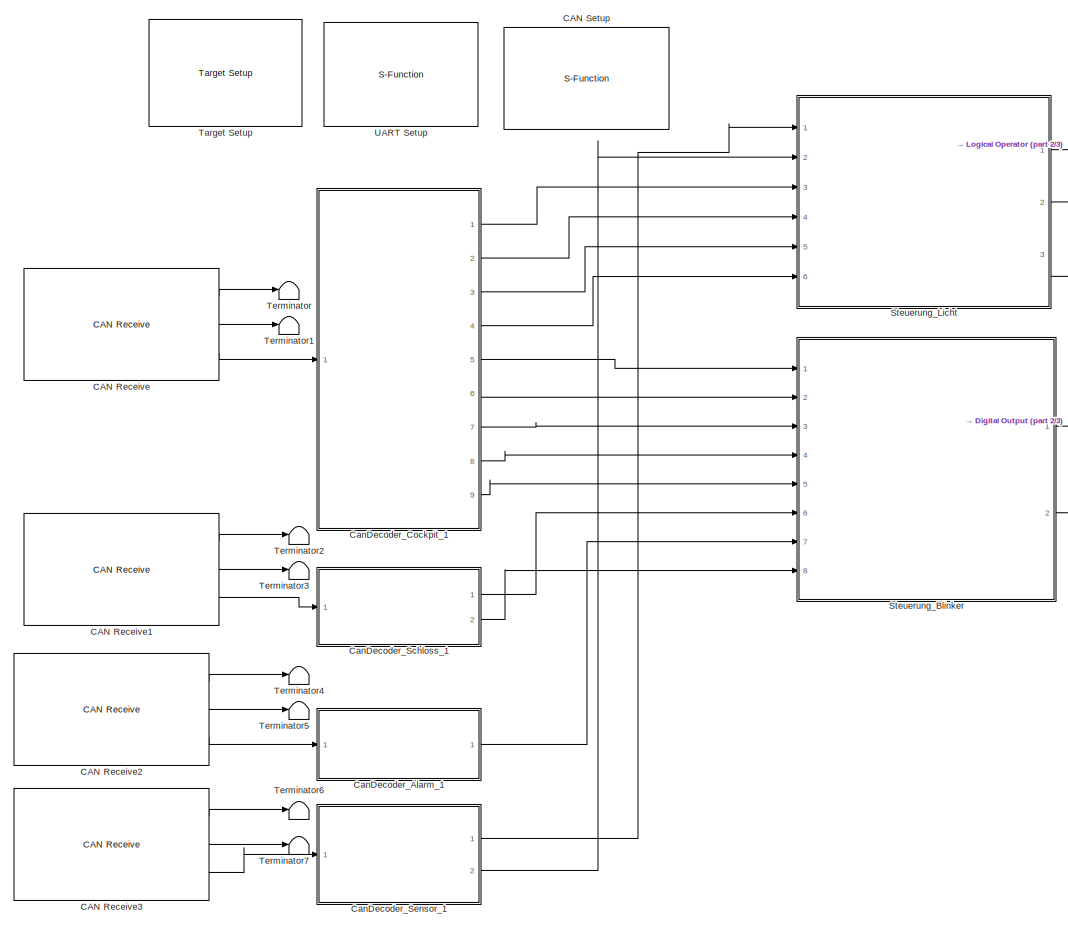
[diagram: root canvas - part 1/3, left side, full height]
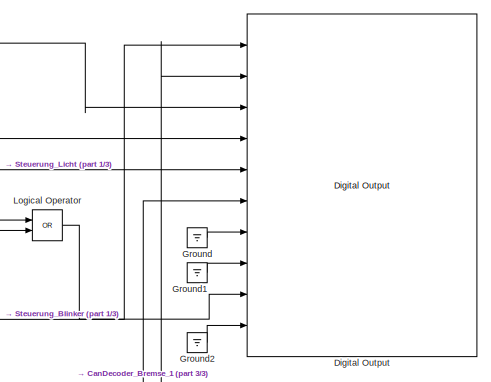
[diagram: root canvas - part 2/3, top right region]
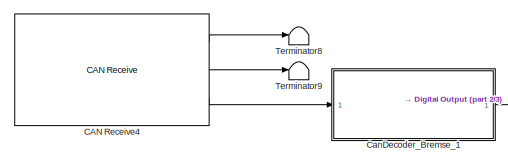
[diagram: root canvas - part 3/3, bottom left region]
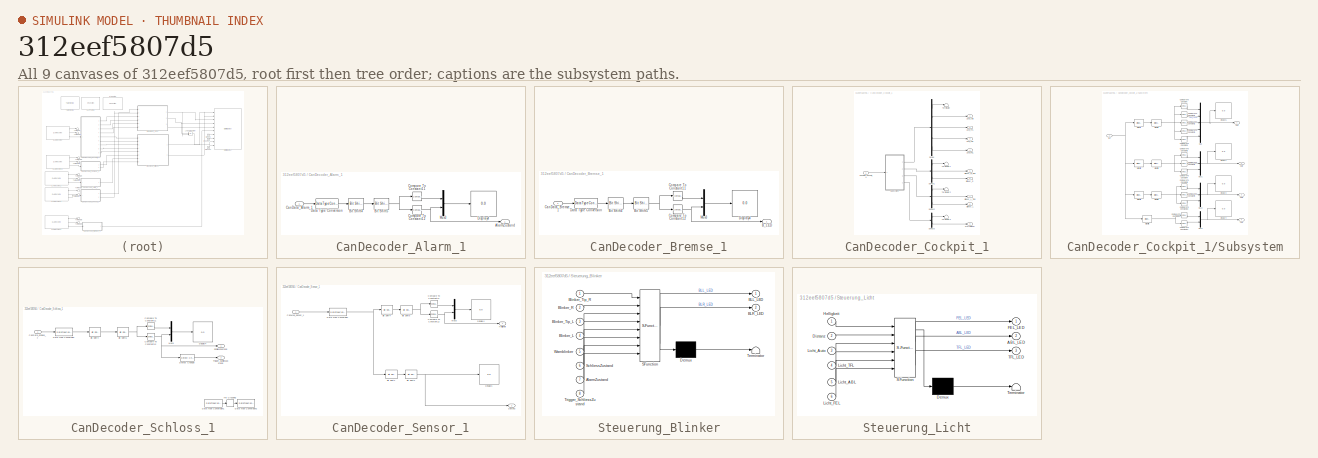
[diagram: thumbnail index - all 9 canvases of the model, root first then tree order]
MODEL slx_312eef5807d5
KIND model
CONFIG AbsTol = auto
CONFIG EnableMultiTasking = off
CONFIG FixedStep = auto
CONFIG MaxStep = auto
CONFIG MinStep = auto
CONFIG PreLoadFcn = waijung.modelPreload; % Required for working with Waijung Blockset. Do not remove.
CONFIG RelTol = 1e-3
CONFIG SampleTimeConstraint = Unconstrained
CONFIG Solver = FixedStepAuto
CONFIG SolverName = FixedStepAuto
CONFIG StartTime = 0.0
CONFIG StopTime = 10.0
BLOCK [Reference] CAN Receive  REF=stm32f4_canbus_lib/CAN Receive
  Ports = [0, 3]
  SourceBlock = stm32f4_canbus_lib/CAN Receive
  SourceType = stm32f4_can
BLOCK [Reference] CAN Receive1  REF=stm32f4_canbus_lib/CAN Receive
  Ports = [0, 3]
  SourceBlock = stm32f4_canbus_lib/CAN Receive
  SourceType = stm32f4_can
BLOCK [Reference] CAN Receive2  REF=stm32f4_canbus_lib/CAN Receive
  Ports = [0, 3]
  SourceBlock = stm32f4_canbus_lib/CAN Receive
  SourceType = stm32f4_can
BLOCK [Reference] CAN Receive3  REF=stm32f4_canbus_lib/CAN Receive
  Ports = [0, 3]
  SourceBlock = stm32f4_canbus_lib/CAN Receive
  SourceType = stm32f4_can
BLOCK [Reference] CAN Receive4  REF=stm32f4_canbus_lib/CAN Receive
  Ports = [0, 3]
  SourceBlock = stm32f4_canbus_lib/CAN Receive
  SourceType = stm32f4_can
BLOCK [S-Function] CAN Setup
  EnableBusSupport = off
  FunctionName = stm32f4_can
  Parameters = conf,canmodule,0,inputarray,outputarray,'','',confstr,sampletime,sampletimestr,blockid
  Ports = []
  SFcnIsStateOwnerBlock = off
  SFunctionDeploymentMode = off
BLOCK [SubSystem] CanDecoder_Alarm_1
  Ports = [1, 1]
  RequestExecContextInheritance = off
  Variant = off
BLOCK [Outport] CanDecoder_Alarm_1/AlarmZustand
  IconDisplay = Port number
BLOCK [Reference] CanDecoder_Alarm_1/Bit Shift4  REF=hdlsllib/Logic and Bit
Operations/Bit Shift
  Ports = [1, 1]
  SourceBlock = hdlsllib/Logic and Bit\nOperations/Bit Shift
  SourceProductBaseCode = HD
  SourceProductName = HDL Coder
  SourceType = Bit Shift
BLOCK [Reference] CanDecoder_Alarm_1/Bit Shift5  REF=hdlsllib/Logic and Bit
Operations/Bit Shift
  Ports = [1, 1]
  SourceBlock = hdlsllib/Logic and Bit\nOperations/Bit Shift
  SourceProductBaseCode = HD
  SourceProductName = HDL Coder
  SourceType = Bit Shift
BLOCK [Inport] CanDecoder_Alarm_1/CanData_Alarm_1
  IconDisplay = Port number
BLOCK [Reference] CanDecoder_Alarm_1/Compare To Constant11  REF=simulink/Logic and Bit
Operations/Compare
To Constant
  Ports = [1, 1]
  SourceBlock = simulink/Logic and Bit\nOperations/Compare\nTo Constant
  SourceProductBaseCode = SL
  SourceProductName = Simulink
  SourceType = Compare To Constant
BLOCK [Reference] CanDecoder_Alarm_1/Compare To Constant12  REF=simulink/Logic and Bit
Operations/Compare
To Constant
  Ports = [1, 1]
  SourceBlock = simulink/Logic and Bit\nOperations/Compare\nTo Constant
  SourceProductBaseCode = SL
  SourceProductName = Simulink
  SourceType = Compare To Constant
BLOCK [DataTypeConversion] CanDecoder_Alarm_1/Data Type Conversion
  OutDataTypeStr = uint8
  RndMeth = Floor
  SaturateOnIntegerOverflow = off
BLOCK [Display] CanDecoder_Alarm_1/Display4
  Decimation = 1
  Ports = [1]
BLOCK [Mux] CanDecoder_Alarm_1/Mux3
  DisplayOption = bar
  Inputs = 2
  Ports = [2, 1]
BLOCK [SubSystem] CanDecoder_Bremse_1
  Ports = [1, 1]
  RequestExecContextInheritance = off
  Variant = off
BLOCK [Outport] CanDecoder_Bremse_1/B_LED
  IconDisplay = Port number
BLOCK [Reference] CanDecoder_Bremse_1/Bit Shift4  REF=hdlsllib/Logic and Bit
Operations/Bit Shift
  Ports = [1, 1]
  SourceBlock = hdlsllib/Logic and Bit\nOperations/Bit Shift
  SourceProductBaseCode = HD
  SourceProductName = HDL Coder
  SourceType = Bit Shift
BLOCK [Reference] CanDecoder_Bremse_1/Bit Shift5  REF=hdlsllib/Logic and Bit
Operations/Bit Shift
  Ports = [1, 1]
  SourceBlock = hdlsllib/Logic and Bit\nOperations/Bit Shift
  SourceProductBaseCode = HD
  SourceProductName = HDL Coder
  SourceType = Bit Shift
BLOCK [Inport] CanDecoder_Bremse_1/CanData_Bremse_1
  IconDisplay = Port number
BLOCK [Reference] CanDecoder_Bremse_1/Compare To Constant11  REF=simulink/Logic and Bit
Operations/Compare
To Constant
  Ports = [1, 1]
  SourceBlock = simulink/Logic and Bit\nOperations/Compare\nTo Constant
  SourceProductBaseCode = SL
  SourceProductName = Simulink
  SourceType = Compare To Constant
BLOCK [Reference] CanDecoder_Bremse_1/Compare To Constant12  REF=simulink/Logic and Bit
Operations/Compare
To Constant
  Ports = [1, 1]
  SourceBlock = simulink/Logic and Bit\nOperations/Compare\nTo Constant
  SourceProductBaseCode = SL
  SourceProductName = Simulink
  SourceType = Compare To Constant
BLOCK [DataTypeConversion] CanDecoder_Bremse_1/Data Type Conversion
  OutDataTypeStr = uint8
  RndMeth = Floor
  SaturateOnIntegerOverflow = off
BLOCK [Display] CanDecoder_Bremse_1/Display4
  Decimation = 1
  Ports = [1]
BLOCK [Mux] CanDecoder_Bremse_1/Mux3
  DisplayOption = bar
  Inputs = 2
  Ports = [2, 1]
BLOCK [SubSystem] CanDecoder_Cockpit_1
  Ports = [1, 9]
  RequestExecContextInheritance = off
  Variant = off
BLOCK [Outport] CanDecoder_Cockpit_1/Blinker_L
  IconDisplay = Port number
  Port = 8
BLOCK [Outport] CanDecoder_Cockpit_1/Blinker_L_Tipp
  IconDisplay = Port number
  Port = 7
BLOCK [Outport] CanDecoder_Cockpit_1/Blinker_R
  IconDisplay = Port number
  Port = 6
BLOCK [Outport] CanDecoder_Cockpit_1/Blinker_R_Tipp
  IconDisplay = Port number
  Port = 5
BLOCK [Inport] CanDecoder_Cockpit_1/CanData_Cockpit_1
  IconDisplay = Port number
BLOCK [Demux] CanDecoder_Cockpit_1/Demux
  DisplayOption = bar
  Outputs = 5
  Ports = [1, 5]
BLOCK [Demux] CanDecoder_Cockpit_1/Demux1
  DisplayOption = bar
  Outputs = 3
  Ports = [1, 3]
BLOCK [Demux] CanDecoder_Cockpit_1/Demux2
  DisplayOption = bar
  Outputs = 3
  Ports = [1, 3]
BLOCK [Demux] CanDecoder_Cockpit_1/Demux3
  DisplayOption = bar
  Outputs = 2
  Ports = [1, 2]
BLOCK [Outport] CanDecoder_Cockpit_1/Licht_ABL
  IconDisplay = Port number
  Port = 3
BLOCK [Outport] CanDecoder_Cockpit_1/Licht_Auto
  IconDisplay = Port number
BLOCK [Outport] CanDecoder_Cockpit_1/Licht_FEL
  IconDisplay = Port number
  Port = 4
BLOCK [Outport] CanDecoder_Cockpit_1/Licht_TFL
  IconDisplay = Port number
  Port = 2
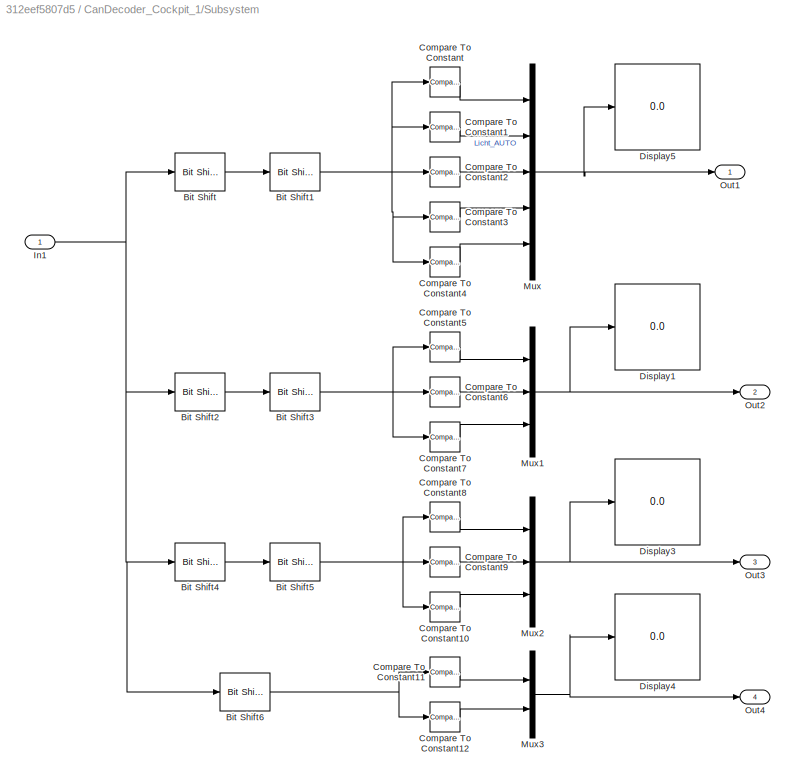
BLOCK [SubSystem] CanDecoder_Cockpit_1/Subsystem
  Ports = [1, 4]
  RequestExecContextInheritance = off
  Variant = off
BLOCK [Reference] CanDecoder_Cockpit_1/Subsystem/Bit Shift  REF=hdlsllib/Logic and Bit
Operations/Bit Shift
  Ports = [1, 1]
  SourceBlock = hdlsllib/Logic and Bit\nOperations/Bit Shift
  SourceProductBaseCode = HD
  SourceProductName = HDL Coder
  SourceType = Bit Shift
BLOCK [Reference] CanDecoder_Cockpit_1/Subsystem/Bit Shift1  REF=hdlsllib/Logic and Bit
Operations/Bit Shift
  Ports = [1, 1]
  SourceBlock = hdlsllib/Logic and Bit\nOperations/Bit Shift
  SourceProductBaseCode = HD
  SourceProductName = HDL Coder
  SourceType = Bit Shift
BLOCK [Reference] CanDecoder_Cockpit_1/Subsystem/Bit Shift2  REF=hdlsllib/Logic and Bit
Operations/Bit Shift
  Ports = [1, 1]
  SourceBlock = hdlsllib/Logic and Bit\nOperations/Bit Shift
  SourceProductBaseCode = HD
  SourceProductName = HDL Coder
  SourceType = Bit Shift
BLOCK [Reference] CanDecoder_Cockpit_1/Subsystem/Bit Shift3  REF=hdlsllib/Logic and Bit
Operations/Bit Shift
  Ports = [1, 1]
  SourceBlock = hdlsllib/Logic and Bit\nOperations/Bit Shift
  SourceProductBaseCode = HD
  SourceProductName = HDL Coder
  SourceType = Bit Shift
BLOCK [Reference] CanDecoder_Cockpit_1/Subsystem/Bit Shift4  REF=hdlsllib/Logic and Bit
Operations/Bit Shift
  Ports = [1, 1]
  SourceBlock = hdlsllib/Logic and Bit\nOperations/Bit Shift
  SourceProductBaseCode = HD
  SourceProductName = HDL Coder
  SourceType = Bit Shift
BLOCK [Reference] CanDecoder_Cockpit_1/Subsystem/Bit Shift5  REF=hdlsllib/Logic and Bit
Operations/Bit Shift
  Ports = [1, 1]
  SourceBlock = hdlsllib/Logic and Bit\nOperations/Bit Shift
  SourceProductBaseCode = HD
  SourceProductName = HDL Coder
  SourceType = Bit Shift
BLOCK [Reference] CanDecoder_Cockpit_1/Subsystem/Bit Shift6  REF=hdlsllib/Logic and Bit
Operations/Bit Shift
  Ports = [1, 1]
  SourceBlock = hdlsllib/Logic and Bit\nOperations/Bit Shift
  SourceProductBaseCode = HD
  SourceProductName = HDL Coder
  SourceType = Bit Shift
BLOCK [Reference] CanDecoder_Cockpit_1/Subsystem/Compare To Constant  REF=simulink/Logic and Bit
Operations/Compare
To Constant
  Ports = [1, 1]
  SourceBlock = simulink/Logic and Bit\nOperations/Compare\nTo Constant
  SourceProductBaseCode = SL
  SourceProductName = Simulink
  SourceType = Compare To Constant
BLOCK [Reference] CanDecoder_Cockpit_1/Subsystem/Compare To Constant1  REF=simulink/Logic and Bit
Operations/Compare
To Constant
  Ports = [1, 1]
  SourceBlock = simulink/Logic and Bit\nOperations/Compare\nTo Constant
  SourceProductBaseCode = SL
  SourceProductName = Simulink
  SourceType = Compare To Constant
BLOCK [Reference] CanDecoder_Cockpit_1/Subsystem/Compare To Constant10  REF=simulink/Logic and Bit
Operations/Compare
To Constant
  Ports = [1, 1]
  SourceBlock = simulink/Logic and Bit\nOperations/Compare\nTo Constant
  SourceProductBaseCode = SL
  SourceProductName = Simulink
  SourceType = Compare To Constant
BLOCK [Reference] CanDecoder_Cockpit_1/Subsystem/Compare To Constant11  REF=simulink/Logic and Bit
Operations/Compare
To Constant
  Ports = [1, 1]
  SourceBlock = simulink/Logic and Bit\nOperations/Compare\nTo Constant
  SourceProductBaseCode = SL
  SourceProductName = Simulink
  SourceType = Compare To Constant
BLOCK [Reference] CanDecoder_Cockpit_1/Subsystem/Compare To Constant12  REF=simulink/Logic and Bit
Operations/Compare
To Constant
  Ports = [1, 1]
  SourceBlock = simulink/Logic and Bit\nOperations/Compare\nTo Constant
  SourceProductBaseCode = SL
  SourceProductName = Simulink
  SourceType = Compare To Constant
BLOCK [Reference] CanDecoder_Cockpit_1/Subsystem/Compare To Constant2  REF=simulink/Logic and Bit
Operations/Compare
To Constant
  Ports = [1, 1]
  SourceBlock = simulink/Logic and Bit\nOperations/Compare\nTo Constant
  SourceProductBaseCode = SL
  SourceProductName = Simulink
  SourceType = Compare To Constant
BLOCK [Reference] CanDecoder_Cockpit_1/Subsystem/Compare To Constant3  REF=simulink/Logic and Bit
Operations/Compare
To Constant
  Ports = [1, 1]
  SourceBlock = simulink/Logic and Bit\nOperations/Compare\nTo Constant
  SourceProductBaseCode = SL
  SourceProductName = Simulink
  SourceType = Compare To Constant
BLOCK [Reference] CanDecoder_Cockpit_1/Subsystem/Compare To Constant4  REF=simulink/Logic and Bit
Operations/Compare
To Constant
  Ports = [1, 1]
  SourceBlock = simulink/Logic and Bit\nOperations/Compare\nTo Constant
  SourceProductBaseCode = SL
  SourceProductName = Simulink
  SourceType = Compare To Constant
BLOCK [Reference] CanDecoder_Cockpit_1/Subsystem/Compare To Constant5  REF=simulink/Logic and Bit
Operations/Compare
To Constant
  Ports = [1, 1]
  SourceBlock = simulink/Logic and Bit\nOperations/Compare\nTo Constant
  SourceProductBaseCode = SL
  SourceProductName = Simulink
  SourceType = Compare To Constant
BLOCK [Reference] CanDecoder_Cockpit_1/Subsystem/Compare To Constant6  REF=simulink/Logic and Bit
Operations/Compare
To Constant
  Ports = [1, 1]
  SourceBlock = simulink/Logic and Bit\nOperations/Compare\nTo Constant
  SourceProductBaseCode = SL
  SourceProductName = Simulink
  SourceType = Compare To Constant
BLOCK [Reference] CanDecoder_Cockpit_1/Subsystem/Compare To Constant7  REF=simulink/Logic and Bit
Operations/Compare
To Constant
  Ports = [1, 1]
  SourceBlock = simulink/Logic and Bit\nOperations/Compare\nTo Constant
  SourceProductBaseCode = SL
  SourceProductName = Simulink
  SourceType = Compare To Constant
BLOCK [Reference] CanDecoder_Cockpit_1/Subsystem/Compare To Constant8  REF=simulink/Logic and Bit
Operations/Compare
To Constant
  Ports = [1, 1]
  SourceBlock = simulink/Logic and Bit\nOperations/Compare\nTo Constant
  SourceProductBaseCode = SL
  SourceProductName = Simulink
  SourceType = Compare To Constant
BLOCK [Reference] CanDecoder_Cockpit_1/Subsystem/Compare To Constant9  REF=simulink/Logic and Bit
Operations/Compare
To Constant
  Ports = [1, 1]
  SourceBlock = simulink/Logic and Bit\nOperations/Compare\nTo Constant
  SourceProductBaseCode = SL
  SourceProductName = Simulink
  SourceType = Compare To Constant
BLOCK [Display] CanDecoder_Cockpit_1/Subsystem/Display1
  Decimation = 1
  Ports = [1]
BLOCK [Display] CanDecoder_Cockpit_1/Subsystem/Display3
  Decimation = 1
  Ports = [1]
BLOCK [Display] CanDecoder_Cockpit_1/Subsystem/Display4
  Decimation = 1
  Ports = [1]
BLOCK [Display] CanDecoder_Cockpit_1/Subsystem/Display5
  Decimation = 1
  Ports = [1]
BLOCK [Inport] CanDecoder_Cockpit_1/Subsystem/In1
  IconDisplay = Port number
BLOCK [Mux] CanDecoder_Cockpit_1/Subsystem/Mux
  DisplayOption = bar
  Inputs = 5
  Ports = [5, 1]
BLOCK [Mux] CanDecoder_Cockpit_1/Subsystem/Mux1
  DisplayOption = bar
  Inputs = 3
  Ports = [3, 1]
BLOCK [Mux] CanDecoder_Cockpit_1/Subsystem/Mux2
  DisplayOption = bar
  Inputs = 3
  Ports = [3, 1]
BLOCK [Mux] CanDecoder_Cockpit_1/Subsystem/Mux3
  DisplayOption = bar
  Inputs = 2
  Ports = [2, 1]
BLOCK [Outport] CanDecoder_Cockpit_1/Subsystem/Out1
  IconDisplay = Port number
BLOCK [Outport] CanDecoder_Cockpit_1/Subsystem/Out2
  IconDisplay = Port number
  Port = 2
BLOCK [Outport] CanDecoder_Cockpit_1/Subsystem/Out3
  IconDisplay = Port number
  Port = 3
BLOCK [Outport] CanDecoder_Cockpit_1/Subsystem/Out4
  IconDisplay = Port number
  Port = 4
BLOCK [Terminator] CanDecoder_Cockpit_1/Terminator
BLOCK [Terminator] CanDecoder_Cockpit_1/Terminator1
BLOCK [Terminator] CanDecoder_Cockpit_1/Terminator2
BLOCK [Terminator] CanDecoder_Cockpit_1/Terminator3
BLOCK [Outport] CanDecoder_Cockpit_1/Warnblinker
  IconDisplay = Port number
  Port = 9
BLOCK [SubSystem] CanDecoder_Schloss_1
  Ports = [1, 2]
  RequestExecContextInheritance = off
  Variant = off
BLOCK [Reference] CanDecoder_Schloss_1/Bit Shift4  REF=hdlsllib/Logic and Bit
Operations/Bit Shift
  Ports = [1, 1]
  SourceBlock = hdlsllib/Logic and Bit\nOperations/Bit Shift
  SourceProductBaseCode = HD
  SourceProductName = HDL Coder
  SourceType = Bit Shift
BLOCK [Reference] CanDecoder_Schloss_1/Bit Shift5  REF=hdlsllib/Logic and Bit
Operations/Bit Shift
  Ports = [1, 1]
  SourceBlock = hdlsllib/Logic and Bit\nOperations/Bit Shift
  SourceProductBaseCode = HD
  SourceProductName = HDL Coder
  SourceType = Bit Shift
BLOCK [Inport] CanDecoder_Schloss_1/CanData_Schloss_1
  IconDisplay = Port number
BLOCK [Reference] CanDecoder_Schloss_1/Compare To Constant11  REF=simulink/Logic and Bit
Operations/Compare
To Constant
  Ports = [1, 1]
  SourceBlock = simulink/Logic and Bit\nOperations/Compare\nTo Constant
  SourceProductBaseCode = SL
  SourceProductName = Simulink
  SourceType = Compare To Constant
BLOCK [Reference] CanDecoder_Schloss_1/Compare To Constant12  REF=simulink/Logic and Bit
Operations/Compare
To Constant
  Ports = [1, 1]
  SourceBlock = simulink/Logic and Bit\nOperations/Compare\nTo Constant
  SourceProductBaseCode = SL
  SourceProductName = Simulink
  SourceType = Compare To Constant
BLOCK [DataTypeConversion] CanDecoder_Schloss_1/Data Type Conversion
  OutDataTypeStr = uint8
  RndMeth = Floor
  SaturateOnIntegerOverflow = off
BLOCK [DataTypeConversion] CanDecoder_Schloss_1/Data Type Conversion1
  Commented = on
  RndMeth = Floor
  SaturateOnIntegerOverflow = off
BLOCK [DataTypeConversion] CanDecoder_Schloss_1/Data Type Conversion2
  Commented = on
  RndMeth = Floor
  SaturateOnIntegerOverflow = off
BLOCK [Reference] CanDecoder_Schloss_1/Detect Change  REF=simulink/Logic and Bit
Operations/Detect
Change
  Ports = [1, 1]
  SourceBlock = simulink/Logic and Bit\nOperations/Detect\nChange
  SourceProductBaseCode = SL
  SourceProductName = Simulink
  SourceType = Detect Change
BLOCK [Display] CanDecoder_Schloss_1/Display4
  Decimation = 1
  Ports = [1]
BLOCK [HitCross] CanDecoder_Schloss_1/Hit Crossing
  Commented = on
  HitCrossingOffset = 0.5
  Ports = [1, 1]
BLOCK [Mux] CanDecoder_Schloss_1/Mux3
  DisplayOption = bar
  Inputs = 2
  Ports = [2, 1]
BLOCK [Outport] CanDecoder_Schloss_1/SchliessZustand
  IconDisplay = Port number
BLOCK [Outport] CanDecoder_Schloss_1/Trigger_SchliessZustand
  IconDisplay = Port number
  Port = 2
BLOCK [SubSystem] CanDecoder_Sensor_1
  Ports = [1, 2]
  RequestExecContextInheritance = off
  Variant = off
BLOCK [Reference] CanDecoder_Sensor_1/Bit Shift1  REF=hdlsllib/Logic and Bit
Operations/Bit Shift
  Ports = [1, 1]
  SourceBlock = hdlsllib/Logic and Bit\nOperations/Bit Shift
  SourceProductBaseCode = HD
  SourceProductName = HDL Coder
  SourceType = Bit Shift
BLOCK [Reference] CanDecoder_Sensor_1/Bit Shift2  REF=hdlsllib/Logic and Bit
Operations/Bit Shift
  Ports = [1, 1]
  SourceBlock = hdlsllib/Logic and Bit\nOperations/Bit Shift
  SourceProductBaseCode = HD
  SourceProductName = HDL Coder
  SourceType = Bit Shift
BLOCK [Reference] CanDecoder_Sensor_1/Bit Shift4  REF=hdlsllib/Logic and Bit
Operations/Bit Shift
  Ports = [1, 1]
  SourceBlock = hdlsllib/Logic and Bit\nOperations/Bit Shift
  SourceProductBaseCode = HD
  SourceProductName = HDL Coder
  SourceType = Bit Shift
BLOCK [Reference] CanDecoder_Sensor_1/Bit Shift5  REF=hdlsllib/Logic and Bit
Operations/Bit Shift
  Ports = [1, 1]
  SourceBlock = hdlsllib/Logic and Bit\nOperations/Bit Shift
  SourceProductBaseCode = HD
  SourceProductName = HDL Coder
  SourceType = Bit Shift
BLOCK [Inport] CanDecoder_Sensor_1/CanMsg_Sensor_1
  IconDisplay = Port number
BLOCK [Reference] CanDecoder_Sensor_1/Compare To Constant11  REF=simulink/Logic and Bit
Operations/Compare
To Constant
  Ports = [1, 1]
  SourceBlock = simulink/Logic and Bit\nOperations/Compare\nTo Constant
  SourceProductBaseCode = SL
  SourceProductName = Simulink
  SourceType = Compare To Constant
BLOCK [Reference] CanDecoder_Sensor_1/Compare To Constant12  REF=simulink/Logic and Bit
Operations/Compare
To Constant
  Ports = [1, 1]
  SourceBlock = simulink/Logic and Bit\nOperations/Compare\nTo Constant
  SourceProductBaseCode = SL
  SourceProductName = Simulink
  SourceType = Compare To Constant
BLOCK [DataTypeConversion] CanDecoder_Sensor_1/Data Type Conversion
  OutDataTypeStr = uint16
  RndMeth = Floor
  SaturateOnIntegerOverflow = off
BLOCK [Display] CanDecoder_Sensor_1/Display1
  Decimation = 1
  Format = long
  Ports = [1]
BLOCK [Display] CanDecoder_Sensor_1/Display4
  Decimation = 1
  Ports = [1]
BLOCK [Outport] CanDecoder_Sensor_1/Distanz
  IconDisplay = Port number
  Port = 2
BLOCK [Outport] CanDecoder_Sensor_1/Helligkeit
  IconDisplay = Port number
BLOCK [Mux] CanDecoder_Sensor_1/Mux3
  DisplayOption = bar
  Inputs = 2
  Ports = [2, 1]
BLOCK [Reference] Digital Output  REF=stm32f4_io_lib/Digital Output
  Ports = [10]
  SourceBlock = stm32f4_io_lib/Digital Output
  SourceProductName = Waijung Blockset
  SourceType = stm32f4_digital_output
BLOCK [Ground] Ground
BLOCK [Ground] Ground1
BLOCK [Ground] Ground2
BLOCK [Logic] Logical Operator
  AllPortsSameDT = off
  Operator = OR
  OutDataTypeStr = boolean
  Ports = [2, 1]
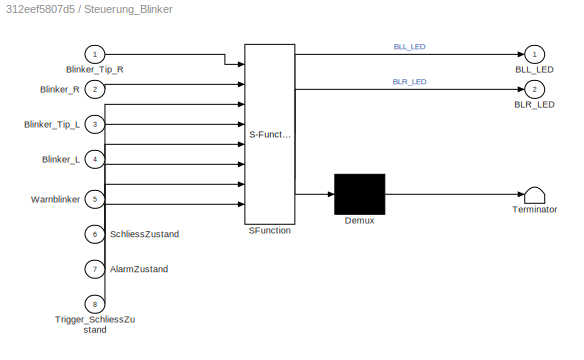
BLOCK [SubSystem] Steuerung_Blinker
  ErrorFcn = Stateflow.Translate.translate
  PermitHierarchicalResolution = ExplicitOnly
  Ports = [8, 2]
  RequestExecContextInheritance = off
  SFBlockType = Chart
  TreatAsAtomicUnit = on
  Variant = off
BLOCK [Demux] Steuerung_Blinker/ Demux 
  Outputs = 1
  Ports = [1, 1]
BLOCK [S-Function] Steuerung_Blinker/ SFunction 
  EnableBusSupport = on
  FunctionName = sf_sfun
  Parameters = 9
  PortCounts = [8 3]
  Ports = [8, 3]
  SFcnIsStateOwnerBlock = off
  SFunctionDeploymentMode = off
  Tag = Stateflow S-Function BlinkerCAN 3
BLOCK [Terminator] Steuerung_Blinker/ Terminator 
BLOCK [Inport] Steuerung_Blinker/AlarmZustand
  IconDisplay = Port number
  Port = 7
BLOCK [Outport] Steuerung_Blinker/BLL_LED
  IconDisplay = Port number
BLOCK [Outport] Steuerung_Blinker/BLR_LED
  IconDisplay = Port number
  Port = 2
BLOCK [Inport] Steuerung_Blinker/Blinker_L
  IconDisplay = Port number
  Port = 4
BLOCK [Inport] Steuerung_Blinker/Blinker_R
  IconDisplay = Port number
  Port = 2
BLOCK [Inport] Steuerung_Blinker/Blinker_Tip_L
  IconDisplay = Port number
  Port = 3
BLOCK [Inport] Steuerung_Blinker/Blinker_Tip_R
  IconDisplay = Port number
BLOCK [Inport] Steuerung_Blinker/SchliessZustand
  IconDisplay = Port number
  Port = 6
BLOCK [Inport] Steuerung_Blinker/Trigger_SchliessZustand
  IconDisplay = Port number
  Port = 8
BLOCK [Inport] Steuerung_Blinker/Warnblinker
  IconDisplay = Port number
  Port = 5
BLOCK [SubSystem] Steuerung_Licht
  ErrorFcn = Stateflow.Translate.translate
  PermitHierarchicalResolution = ExplicitOnly
  Ports = [6, 3]
  RequestExecContextInheritance = off
  SFBlockType = Chart
  TreatAsAtomicUnit = on
  Variant = off
BLOCK [Demux] Steuerung_Licht/ Demux 
  Outputs = 1
  Ports = [1, 1]
BLOCK [S-Function] Steuerung_Licht/ SFunction 
  EnableBusSupport = on
  FunctionName = sf_sfun
  PortCounts = [6 4]
  Ports = [6, 4]
  SFcnIsStateOwnerBlock = off
  SFunctionDeploymentMode = off
  Tag = Stateflow S-Function BlinkerCAN 1
BLOCK [Terminator] Steuerung_Licht/ Terminator 
BLOCK [Outport] Steuerung_Licht/ABL_LED
  IconDisplay = Port number
  Port = 2
BLOCK [Inport] Steuerung_Licht/Distanz
  IconDisplay = Port number
  Port = 2
BLOCK [Outport] Steuerung_Licht/FEL_LED
  IconDisplay = Port number
BLOCK [Inport] Steuerung_Licht/Helligkeit
  IconDisplay = Port number
BLOCK [Inport] Steuerung_Licht/Licht_ABL
  IconDisplay = Port number
  Port = 5
BLOCK [Inport] Steuerung_Licht/Licht_Auto
  IconDisplay = Port number
  Port = 3
BLOCK [Inport] Steuerung_Licht/Licht_FEL
  IconDisplay = Port number
  Port = 6
BLOCK [Inport] Steuerung_Licht/Licht_TFL
  IconDisplay = Port number
  Port = 4
BLOCK [Outport] Steuerung_Licht/TFL_LED
  IconDisplay = Port number
  Port = 3
BLOCK [Reference] Target Setup  REF=stm32f4_device_config_lib/Target Setup
  Ports = []
  Priority = 100
  SourceBlock = stm32f4_device_config_lib/Target Setup
  SourceProductName = Waijung Blockset
  SourceType = stm32f4_target_setup
BLOCK [Terminator] Terminator
BLOCK [Terminator] Terminator1
BLOCK [Terminator] Terminator2
BLOCK [Terminator] Terminator3
BLOCK [Terminator] Terminator4
BLOCK [Terminator] Terminator5
BLOCK [Terminator] Terminator6
BLOCK [Terminator] Terminator7
BLOCK [Terminator] Terminator8
BLOCK [Terminator] Terminator9
BLOCK [S-Function] UART Setup
  EnableBusSupport = off
  FunctionName = stm32f4_usart
  Parameters = configuration,uartmodule,transfer,baudrate,inputtype,outputtype,confstr,binheaderarray,binterminatorarray,asciiheader,asciiterminator,bindatalength,packetmode,varname,sampletime,sampletimestr,blockid
  Ports = []
  Priority = 1
  SFcnIsStateOwnerBlock = off
  SFunctionDeploymentMode = off
LINE CAN Receive1:1 -> Terminator2:1
LINE CAN Receive1:2 -> Terminator3:1
LINE CAN Receive1:3 -> CanDecoder_Schloss_1:1
LINE CAN Receive2:1 -> Terminator4:1
LINE CAN Receive2:2 -> Terminator5:1
LINE CAN Receive2:3 -> CanDecoder_Alarm_1:1
LINE CAN Receive3:1 -> Terminator6:1
LINE CAN Receive3:2 -> Terminator7:1
LINE CAN Receive3:3 -> CanDecoder_Sensor_1:1
LINE CAN Receive4:1 -> Terminator8:1
LINE CAN Receive4:2 -> Terminator9:1
LINE CAN Receive4:3 -> CanDecoder_Bremse_1:1
LINE CAN Receive:1 -> Terminator:1
LINE CAN Receive:2 -> Terminator1:1
LINE CAN Receive:3 -> CanDecoder_Cockpit_1:1
LINE CanDecoder_Alarm_1/Bit Shift4:1 -> CanDecoder_Alarm_1/Bit Shift5:1
NET CanDecoder_Alarm_1/Bit Shift5:1 -> CanDecoder_Alarm_1/Compare To Constant11:1, CanDecoder_Alarm_1/Compare To Constant12:1
LINE CanDecoder_Alarm_1/CanData_Alarm_1:1 -> CanDecoder_Alarm_1/Data Type Conversion:1
LINE CanDecoder_Alarm_1/Compare To Constant11:1 -> CanDecoder_Alarm_1/Mux3:1
NET CanDecoder_Alarm_1/Compare To Constant12:1 -> CanDecoder_Alarm_1/AlarmZustand:1, CanDecoder_Alarm_1/Mux3:2
LINE CanDecoder_Alarm_1/Data Type Conversion:1 -> CanDecoder_Alarm_1/Bit Shift4:1
LINE CanDecoder_Alarm_1/Mux3:1 -> CanDecoder_Alarm_1/Display4:1
LINE CanDecoder_Alarm_1:1 -> Steuerung_Blinker:7
LINE CanDecoder_Bremse_1/Bit Shift4:1 -> CanDecoder_Bremse_1/Bit Shift5:1
NET CanDecoder_Bremse_1/Bit Shift5:1 -> CanDecoder_Bremse_1/Compare To Constant11:1, CanDecoder_Bremse_1/Compare To Constant12:1
LINE CanDecoder_Bremse_1/CanData_Bremse_1:1 -> CanDecoder_Bremse_1/Data Type Conversion:1
LINE CanDecoder_Bremse_1/Compare To Constant11:1 -> CanDecoder_Bremse_1/Mux3:1
NET CanDecoder_Bremse_1/Compare To Constant12:1 -> CanDecoder_Bremse_1/B_LED:1, CanDecoder_Bremse_1/Mux3:2
LINE CanDecoder_Bremse_1/Data Type Conversion:1 -> CanDecoder_Bremse_1/Bit Shift4:1
LINE CanDecoder_Bremse_1/Mux3:1 -> CanDecoder_Bremse_1/Display4:1
LINE CanDecoder_Bremse_1:1 -> Digital Output:6
LINE CanDecoder_Cockpit_1/CanData_Cockpit_1:1 -> CanDecoder_Cockpit_1/Subsystem:1
LINE CanDecoder_Cockpit_1/Demux1:1 -> CanDecoder_Cockpit_1/Terminator1:1
LINE CanDecoder_Cockpit_1/Demux1:2 -> CanDecoder_Cockpit_1/Blinker_R_Tipp:1
LINE CanDecoder_Cockpit_1/Demux1:3 -> CanDecoder_Cockpit_1/Blinker_R:1
LINE CanDecoder_Cockpit_1/Demux2:1 -> CanDecoder_Cockpit_1/Terminator2:1
LINE CanDecoder_Cockpit_1/Demux2:2 -> CanDecoder_Cockpit_1/Blinker_L_Tipp:1
LINE CanDecoder_Cockpit_1/Demux2:3 -> CanDecoder_Cockpit_1/Blinker_L:1
LINE CanDecoder_Cockpit_1/Demux3:1 -> CanDecoder_Cockpit_1/Terminator3:1
LINE CanDecoder_Cockpit_1/Demux3:2 -> CanDecoder_Cockpit_1/Warnblinker:1
LINE CanDecoder_Cockpit_1/Demux:1 -> CanDecoder_Cockpit_1/Terminator:1
LINE CanDecoder_Cockpit_1/Demux:2 -> CanDecoder_Cockpit_1/Licht_Auto:1
LINE CanDecoder_Cockpit_1/Demux:3 -> CanDecoder_Cockpit_1/Licht_TFL:1
LINE CanDecoder_Cockpit_1/Demux:4 -> CanDecoder_Cockpit_1/Licht_ABL:1
LINE CanDecoder_Cockpit_1/Demux:5 -> CanDecoder_Cockpit_1/Licht_FEL:1
NET CanDecoder_Cockpit_1/Subsystem/Bit Shift1:1 -> CanDecoder_Cockpit_1/Subsystem/Compare To Constant1:1, CanDecoder_Cockpit_1/Subsystem/Compare To Constant2:1, CanDecoder_Cockpit_1/Subsystem/Compare To Constant3:1, CanDecoder_Cockpit_1/Subsystem/Compare To Constant4:1, CanDecoder_Cockpit_1/Subsystem/Compare To Constant:1
LINE CanDecoder_Cockpit_1/Subsystem/Bit Shift2:1 -> CanDecoder_Cockpit_1/Subsystem/Bit Shift3:1
NET CanDecoder_Cockpit_1/Subsystem/Bit Shift3:1 -> CanDecoder_Cockpit_1/Subsystem/Compare To Constant5:1, CanDecoder_Cockpit_1/Subsystem/Compare To Constant6:1, CanDecoder_Cockpit_1/Subsystem/Compare To Constant7:1
LINE CanDecoder_Cockpit_1/Subsystem/Bit Shift4:1 -> CanDecoder_Cockpit_1/Subsystem/Bit Shift5:1
NET CanDecoder_Cockpit_1/Subsystem/Bit Shift5:1 -> CanDecoder_Cockpit_1/Subsystem/Compare To Constant10:1, CanDecoder_Cockpit_1/Subsystem/Compare To Constant8:1, CanDecoder_Cockpit_1/Subsystem/Compare To Constant9:1
NET CanDecoder_Cockpit_1/Subsystem/Bit Shift6:1 -> CanDecoder_Cockpit_1/Subsystem/Compare To Constant11:1, CanDecoder_Cockpit_1/Subsystem/Compare To Constant12:1
LINE CanDecoder_Cockpit_1/Subsystem/Bit Shift:1 -> CanDecoder_Cockpit_1/Subsystem/Bit Shift1:1
LINE CanDecoder_Cockpit_1/Subsystem/Compare To Constant10:1 -> CanDecoder_Cockpit_1/Subsystem/Mux2:3
LINE CanDecoder_Cockpit_1/Subsystem/Compare To Constant11:1 -> CanDecoder_Cockpit_1/Subsystem/Mux3:1
LINE CanDecoder_Cockpit_1/Subsystem/Compare To Constant12:1 -> CanDecoder_Cockpit_1/Subsystem/Mux3:2
LINE CanDecoder_Cockpit_1/Subsystem/Compare To Constant1:1 -> CanDecoder_Cockpit_1/Subsystem/Mux:2
LINE CanDecoder_Cockpit_1/Subsystem/Compare To Constant2:1 -> CanDecoder_Cockpit_1/Subsystem/Mux:3
LINE CanDecoder_Cockpit_1/Subsystem/Compare To Constant3:1 -> CanDecoder_Cockpit_1/Subsystem/Mux:4
LINE CanDecoder_Cockpit_1/Subsystem/Compare To Constant4:1 -> CanDecoder_Cockpit_1/Subsystem/Mux:5
LINE CanDecoder_Cockpit_1/Subsystem/Compare To Constant5:1 -> CanDecoder_Cockpit_1/Subsystem/Mux1:1
LINE CanDecoder_Cockpit_1/Subsystem/Compare To Constant6:1 -> CanDecoder_Cockpit_1/Subsystem/Mux1:2
LINE CanDecoder_Cockpit_1/Subsystem/Compare To Constant7:1 -> CanDecoder_Cockpit_1/Subsystem/Mux1:3
LINE CanDecoder_Cockpit_1/Subsystem/Compare To Constant8:1 -> CanDecoder_Cockpit_1/Subsystem/Mux2:1
LINE CanDecoder_Cockpit_1/Subsystem/Compare To Constant9:1 -> CanDecoder_Cockpit_1/Subsystem/Mux2:2
LINE CanDecoder_Cockpit_1/Subsystem/Compare To Constant:1 -> CanDecoder_Cockpit_1/Subsystem/Mux:1
NET CanDecoder_Cockpit_1/Subsystem/In1:1 -> CanDecoder_Cockpit_1/Subsystem/Bit Shift2:1, CanDecoder_Cockpit_1/Subsystem/Bit Shift4:1, CanDecoder_Cockpit_1/Subsystem/Bit Shift6:1, CanDecoder_Cockpit_1/Subsystem/Bit Shift:1
NET CanDecoder_Cockpit_1/Subsystem/Mux1:1 -> CanDecoder_Cockpit_1/Subsystem/Display1:1, CanDecoder_Cockpit_1/Subsystem/Out2:1
NET CanDecoder_Cockpit_1/Subsystem/Mux2:1 -> CanDecoder_Cockpit_1/Subsystem/Display3:1, CanDecoder_Cockpit_1/Subsystem/Out3:1
NET CanDecoder_Cockpit_1/Subsystem/Mux3:1 -> CanDecoder_Cockpit_1/Subsystem/Display4:1, CanDecoder_Cockpit_1/Subsystem/Out4:1
NET CanDecoder_Cockpit_1/Subsystem/Mux:1 -> CanDecoder_Cockpit_1/Subsystem/Display5:1, CanDecoder_Cockpit_1/Subsystem/Out1:1
LINE CanDecoder_Cockpit_1/Subsystem:1 -> CanDecoder_Cockpit_1/Demux:1
LINE CanDecoder_Cockpit_1/Subsystem:2 -> CanDecoder_Cockpit_1/Demux1:1
LINE CanDecoder_Cockpit_1/Subsystem:3 -> CanDecoder_Cockpit_1/Demux2:1
LINE CanDecoder_Cockpit_1/Subsystem:4 -> CanDecoder_Cockpit_1/Demux3:1
LINE CanDecoder_Cockpit_1:1 -> Steuerung_Licht:3
LINE CanDecoder_Cockpit_1:2 -> Steuerung_Licht:4
LINE CanDecoder_Cockpit_1:3 -> Steuerung_Licht:5
LINE CanDecoder_Cockpit_1:4 -> Steuerung_Licht:6
LINE CanDecoder_Cockpit_1:5 -> Steuerung_Blinker:1
LINE CanDecoder_Cockpit_1:6 -> Steuerung_Blinker:2
LINE CanDecoder_Cockpit_1:7 -> Steuerung_Blinker:3
LINE CanDecoder_Cockpit_1:8 -> Steuerung_Blinker:4
LINE CanDecoder_Cockpit_1:9 -> Steuerung_Blinker:5
LINE CanDecoder_Schloss_1/Bit Shift4:1 -> CanDecoder_Schloss_1/Bit Shift5:1
NET CanDecoder_Schloss_1/Bit Shift5:1 -> CanDecoder_Schloss_1/Compare To Constant11:1, CanDecoder_Schloss_1/Compare To Constant12:1
LINE CanDecoder_Schloss_1/CanData_Schloss_1:1 -> CanDecoder_Schloss_1/Data Type Conversion:1
LINE CanDecoder_Schloss_1/Compare To Constant11:1 -> CanDecoder_Schloss_1/Mux3:1
NET CanDecoder_Schloss_1/Compare To Constant12:1 -> CanDecoder_Schloss_1/Detect Change:1, CanDecoder_Schloss_1/Mux3:2, CanDecoder_Schloss_1/SchliessZustand:1
LINE CanDecoder_Schloss_1/Data Type Conversion1:1 -> CanDecoder_Schloss_1/Hit Crossing:1
LINE CanDecoder_Schloss_1/Data Type Conversion:1 -> CanDecoder_Schloss_1/Bit Shift4:1
LINE CanDecoder_Schloss_1/Detect Change:1 -> CanDecoder_Schloss_1/Trigger_SchliessZustand:1
LINE CanDecoder_Schloss_1/Hit Crossing:1 -> CanDecoder_Schloss_1/Data Type Conversion2:1
LINE CanDecoder_Schloss_1/Mux3:1 -> CanDecoder_Schloss_1/Display4:1
LINE CanDecoder_Schloss_1:1 -> Steuerung_Blinker:6
LINE CanDecoder_Schloss_1:2 -> Steuerung_Blinker:8
LINE CanDecoder_Sensor_1/Bit Shift1:1 -> CanDecoder_Sensor_1/Bit Shift2:1
NET CanDecoder_Sensor_1/Bit Shift2:1 -> CanDecoder_Sensor_1/Display1:1, CanDecoder_Sensor_1/Distanz:1
LINE CanDecoder_Sensor_1/Bit Shift4:1 -> CanDecoder_Sensor_1/Bit Shift5:1
NET CanDecoder_Sensor_1/Bit Shift5:1 -> CanDecoder_Sensor_1/Compare To Constant11:1, CanDecoder_Sensor_1/Compare To Constant12:1
LINE CanDecoder_Sensor_1/CanMsg_Sensor_1:1 -> CanDecoder_Sensor_1/Data Type Conversion:1
LINE CanDecoder_Sensor_1/Compare To Constant11:1 -> CanDecoder_Sensor_1/Mux3:1
NET CanDecoder_Sensor_1/Compare To Constant12:1 -> CanDecoder_Sensor_1/Helligkeit:1, CanDecoder_Sensor_1/Mux3:2
NET CanDecoder_Sensor_1/Data Type Conversion:1 -> CanDecoder_Sensor_1/Bit Shift1:1, CanDecoder_Sensor_1/Bit Shift4:1
LINE CanDecoder_Sensor_1/Mux3:1 -> CanDecoder_Sensor_1/Display4:1
LINE CanDecoder_Sensor_1:1 -> Steuerung_Licht:1
LINE CanDecoder_Sensor_1:2 -> Steuerung_Licht:2
LINE Ground1:1 -> Digital Output:8
LINE Ground2:1 -> Digital Output:10
LINE Ground:1 -> Digital Output:7
LINE Logical Operator:1 -> Digital Output:9
LINE Steuerung_Blinker:1 -> Digital Output:1
LINE Steuerung_Blinker:2 -> Digital Output:2
NET Steuerung_Licht:1 -> Digital Output:3, Logical Operator:2
NET Steuerung_Licht:2 -> Digital Output:4, Logical Operator:1
LINE Steuerung_Licht:3 -> Digital Output:5
note: NET lines group one-source signal fan-out (src -> all destinations, sorted); 1:1 wires keep LINE
CHART Steuerung_Licht states=9 transitions=22
  STATE_LABEL 'Default\nentry:\nFEL_LED = false\nABL_LED = false\nTFL_LED = false'
  STATE_LABEL 'Automatik_Betrieb\nentry:\nTFL_LED=false\nABL_LED=false\nFEL_LED=false\n'
  STATE_LABEL 'Hell\nentry:\n TFL_LED=true\n ABL_LED=false\n FEL_LED=false'
  STATE_LABEL 'Dunkel'
  STATE_LABEL 'Kleiner\nentry:\nTFL_LED=false\nABL_LED=true\nFEL_LED=false'
  STATE_LABEL 'Groesser\nentry:\nTFL_LED=false\nABL_LED=false\nFEL_LED=true'
  STATE_LABEL '[Distanz > 250]'
  STATE_LABEL '[Distanz < 250]'
  STATE_LABEL '[Licht_Auto==0]'
  STATE_LABEL '[Helligkeit==1]'
  STATE_LABEL '[Helligkeit==1]'
  STATE_LABEL '[Licht_Auto==0]'
  STATE_LABEL 'Kleiner\nentry:\nTFL_LED=false\nABL_LED=true\nFEL_LED=false'
  STATE_LABEL 'Groesser\nentry:\nTFL_LED=false\nABL_LED=false\nFEL_LED=true'
  STATE_LABEL 'Tagfahr_Licht\nentry:\nTFL_LED=true'
  STATE_LABEL 'Abblend_Licht\nentry:\nABL_LED=true'
  STATE_LABEL 'Fern_Licht\nentry:\nFEL_LED=true'
CHART Steuerung_Blinker states=12 transitions=31
  STATE_LABEL 'Dummy\nentry:\nBLL_LED=false;\nBLR_LED=false\nCountL = 1;\nCountR = 1;\nSchliessCount=0;\n'
  STATE_LABEL 'BlinkerR\nentry:\nBLR_LED=true;\n'
  STATE_LABEL 'BlinkerL\nentry:\nBLL_LED=true;\n'
  STATE_LABEL 'BlinkerTipL\nentry:\nBLL_LED=true;\nexit:\nCountL = CountL + 1;\n'
  STATE_LABEL 'EnableBlinkerTipL\nentry:\nBLL_LED = false\n'
  STATE_LABEL 'WarnBlinker\nentry:\nCountL==9;\nCountR==9;\nBLL_LED=true;\nBLR_LED=true;\n'
  STATE_LABEL 'EnableBlinkerTipR\nentry:\nBLR_LED = false\n'
  STATE_LABEL 'BlinkerTipR\nentry:\nBLR_LED=true;\nexit:\nCountR = CountR + 1;\n'
  STATE_LABEL 'SchliessenBlinken1\nentry:\nBLL_LED=true;\nBLR_LED=true;\n'
  STATE_LABEL 'AlarmBlinken\nentry:\nBLL_LED=(~BLL_LED)\nBLR_LED=(~BLR_LED)'
  STATE_LABEL 'SchliessenBlinken2\nentry:\nBLL_LED=false;\nBLR_LED=false;\nSchliessCount = SchliessCount + 1;\n'
  STATE_LABEL 'OeffnenBlinken\nentry:\nBLL_LED=true;\nBLR_LED=true;'
